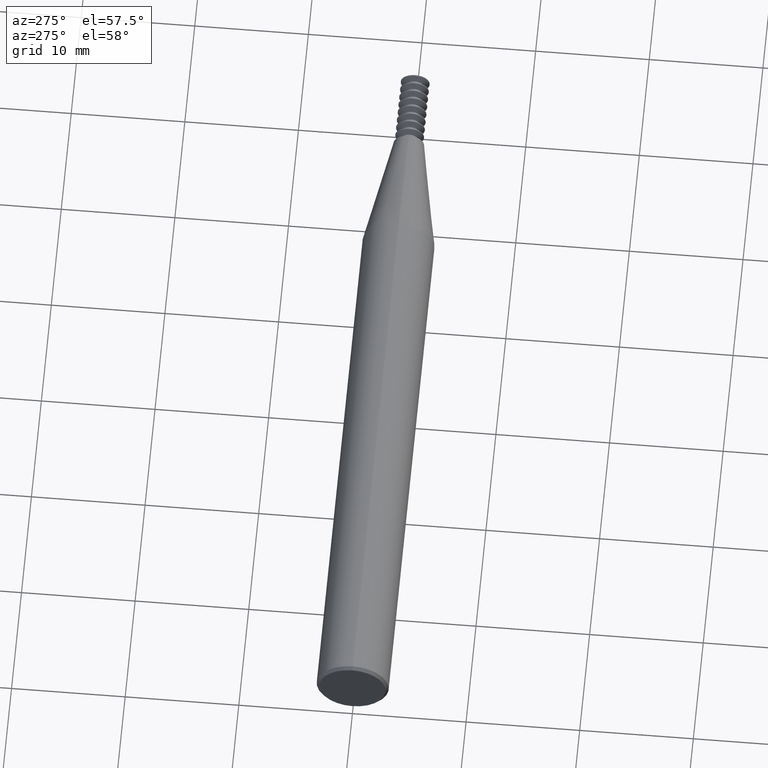
[diagram: clean part render]
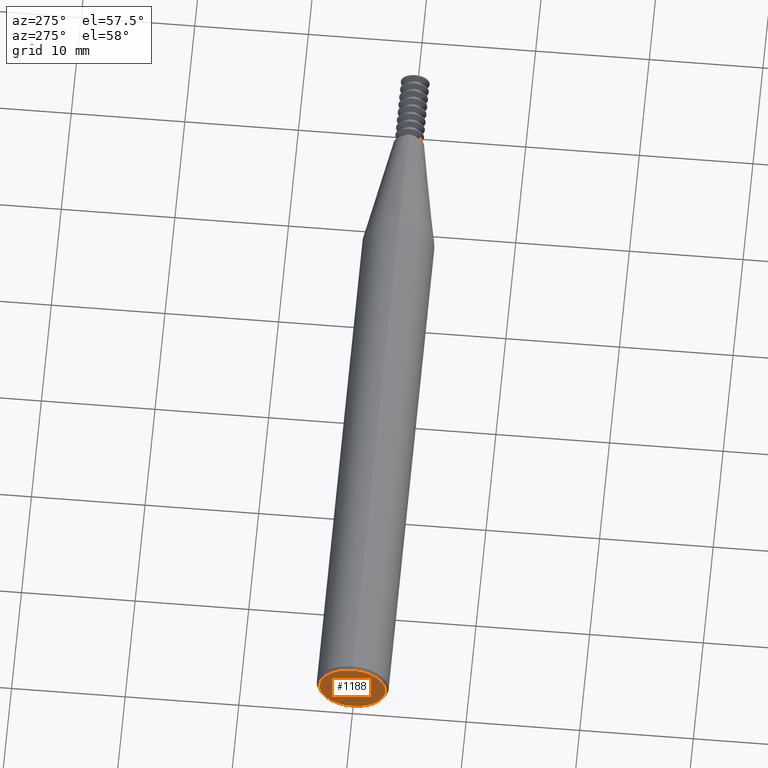
[diagram: same view with one face highlighted and labeled with its STEP entity id]
A machine part, auxiliary view. The second image highlights one B-rep face of the part: STEP entity #1188.
In plain terms, the highlighted planar face has unit normal (-1, 0, 0).
Its self-contained STEP definition (entity closure, byte-faithful):
#33 = DIRECTION ( 'NONE',  ( 0.000000000000000000, 0.000000000000000000, 1.000000000000000000 ) ) ;
#197 = EDGE_LOOP ( 'NONE', ( #442, #852 ) ) ;
#299 = CARTESIAN_POINT ( 'NONE',  ( 0.000000000000000000, 0.000000000000000000, 0.000000000000000000 ) ) ;
#312 = EDGE_CURVE ( 'NONE', #328, #376, #1696, .T. ) ;
#319 = CARTESIAN_POINT ( 'NONE',  ( 0.000000000000000000, 0.000000000000000000, 0.000000000000000000 ) ) ;
#328 = VERTEX_POINT ( 'NONE', #1424 ) ;
#329 = DIRECTION ( 'NONE',  ( 0.000000000000000000, 0.000000000000000000, 1.000000000000000000 ) ) ;
#364 = DIRECTION ( 'NONE',  ( -1.000000000000000000, 0.000000000000000000, 0.000000000000000000 ) ) ;
#376 = VERTEX_POINT ( 'NONE', #550 ) ;
#442 = ORIENTED_EDGE ( 'NONE', *, *, #312, .T. ) ;
#495 = AXIS2_PLACEMENT_3D ( 'NONE', #1726, #364, #33 ) ;
#550 = CARTESIAN_POINT ( 'NONE',  ( 0.000000000000000000, 1.467739188778104438E-17, 0.1148500000000002574 ) ) ;
#599 = DIRECTION ( 'NONE',  ( 0.000000000000000000, 0.000000000000000000, 1.000000000000000000 ) ) ;
#777 = AXIS2_PLACEMENT_3D ( 'NONE', #319, #1402, #329 ) ;
#823 = FACE_OUTER_BOUND ( 'NONE', #197, .T. ) ;
#852 = ORIENTED_EDGE ( 'NONE', *, *, #1897, .T. ) ;
#901 = DIRECTION ( 'NONE',  ( -1.000000000000000000, 0.000000000000000000, 0.000000000000000000 ) ) ;
#1188 = ADVANCED_FACE ( 'NONE', ( #823 ), #1612, .T. ) ;
#1328 = CIRCLE ( 'NONE', #1687, 0.1148500000000002574 ) ;
#1402 = DIRECTION ( 'NONE',  ( -1.000000000000000000, 0.000000000000000000, 0.000000000000000000 ) ) ;
#1424 = CARTESIAN_POINT ( 'NONE',  ( 0.000000000000000000, 0.000000000000000000, -0.1148500000000002574 ) ) ;
#1612 = PLANE ( 'NONE',  #495 ) ;
#1687 = AXIS2_PLACEMENT_3D ( 'NONE', #299, #901, #599 ) ;
#1696 = CIRCLE ( 'NONE', #777, 0.1148500000000002574 ) ;
#1726 = CARTESIAN_POINT ( 'NONE',  ( 0.000000000000000000, 0.000000000000000000, 0.000000000000000000 ) ) ;
#1897 = EDGE_CURVE ( 'NONE', #376, #328, #1328, .T. ) ;